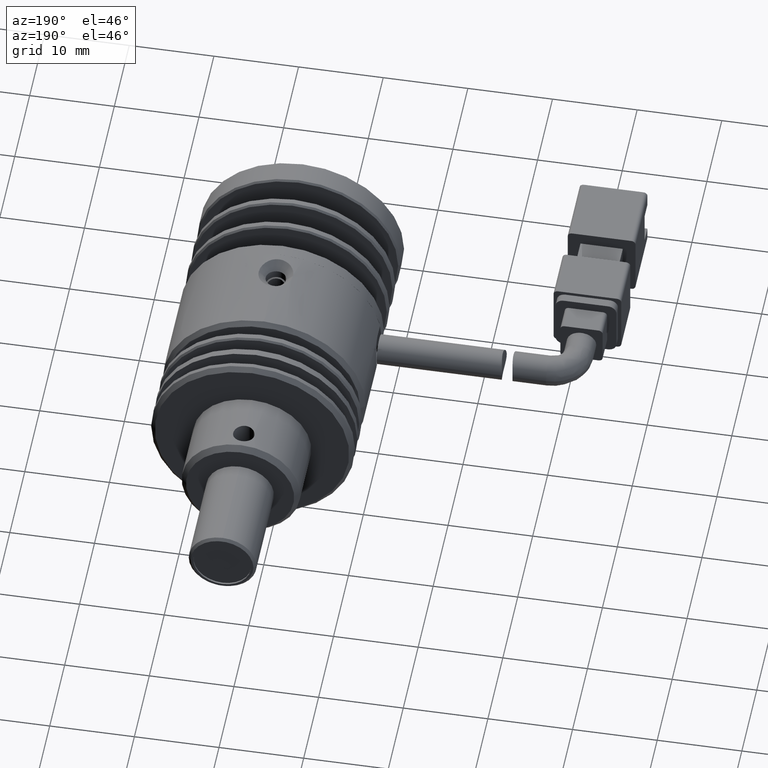
[diagram: clean part render]
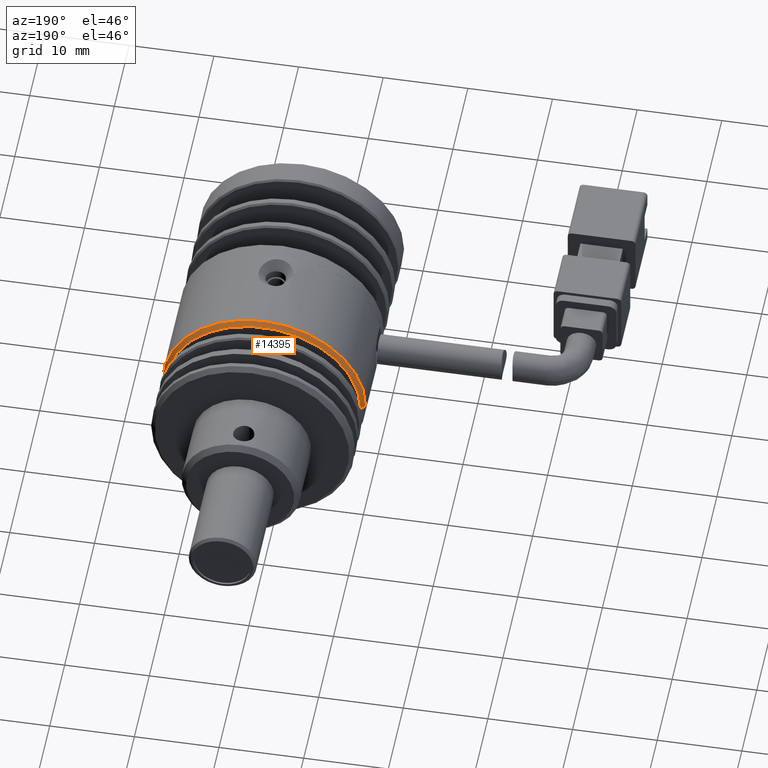
[diagram: same view with one face highlighted and labeled with its STEP entity id]
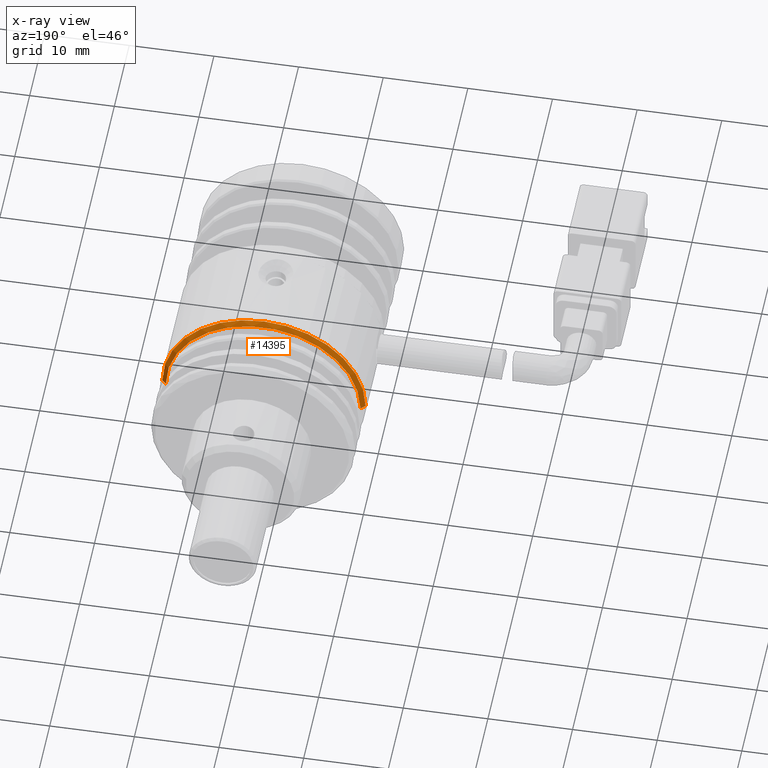
[diagram: x-ray of the same camera — body ghosted, the highlighted face saturated]
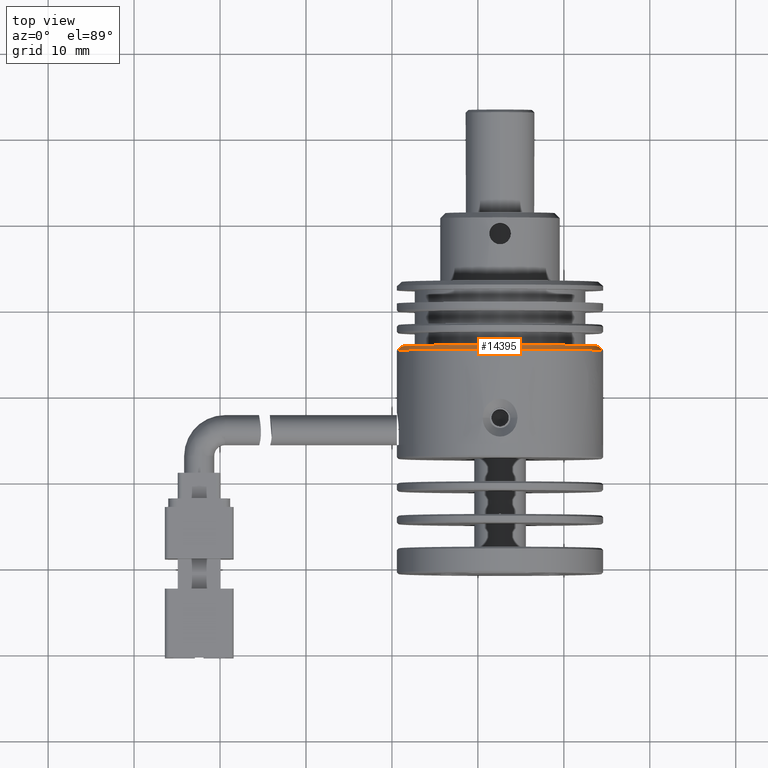
[diagram: same view with one face highlighted and labeled with its STEP entity id]
A machine part, auxiliary view. The second image highlights one B-rep face of the part: STEP entity #14395.
The next image is the same camera in x-ray: the body ghosted, the highlighted face saturated — about 0% of this face is hidden behind the body in this view.
A second angle (top view) of the same face is appended — the face is thin or edge-on in the first view.
In plain terms, the highlighted conical surface has half-angle 45 deg.
Its self-contained STEP definition (entity closure, byte-faithful):
#728 = DIRECTION ( 'NONE',  ( 0.000000000000000000, -1.000000000000000000, 0.000000000000000000 ) ) ;
#811 = VERTEX_POINT ( 'NONE', #1868 ) ;
#1868 = CARTESIAN_POINT ( 'NONE',  ( 14.57493378763582115, -4.714935510012609576, -9.174035921659379866 ) ) ;
#2283 = EDGE_CURVE ( 'NONE', #4476, #3507, #11790, .T. ) ;
#2972 = EDGE_CURVE ( 'NONE', #3507, #4010, #3222, .T. ) ;
#3222 = LINE ( 'NONE', #9267, #5239 ) ;
#3298 = CARTESIAN_POINT ( 'NONE',  ( 2.574933787635819815, -4.714935510012609576, -9.174035921659379866 ) ) ;
#3507 = VERTEX_POINT ( 'NONE', #7334 ) ;
#3624 = AXIS2_PLACEMENT_3D ( 'NONE', #13392, #9125, #6061 ) ;
#4010 = VERTEX_POINT ( 'NONE', #8695 ) ;
#4476 = VERTEX_POINT ( 'NONE', #9957 ) ;
#4819 = DIRECTION ( 'NONE',  ( 1.000000000000000000, -3.016910393003142859E-16, 0.000000000000000000 ) ) ;
#4832 = AXIS2_PLACEMENT_3D ( 'NONE', #5105, #12346, #4819 ) ;
#5105 = CARTESIAN_POINT ( 'NONE',  ( 2.574933787635819815, -4.214935510012605135, -9.174035921659379866 ) ) ;
#5239 = VECTOR ( 'NONE', #7790, 999.9999999999998863 ) ;
#5497 = AXIS2_PLACEMENT_3D ( 'NONE', #3298, #728, #6781 ) ;
#6061 = DIRECTION ( 'NONE',  ( 1.000000000000000000, -2.891205793294678326E-16, 0.000000000000000000 ) ) ;
#6640 = ORIENTED_EDGE ( 'NONE', *, *, #17068, .F. ) ;
#6781 = DIRECTION ( 'NONE',  ( 0.000000000000000000, 0.000000000000000000, -1.000000000000000000 ) ) ;
#7334 = CARTESIAN_POINT ( 'NONE',  ( -8.925066212364191287, -4.214935510012599806, -9.174035921659379866 ) ) ;
#7642 = FACE_OUTER_BOUND ( 'NONE', #18087, .T. ) ;
#7790 = DIRECTION ( 'NONE',  ( -0.7071067811865441310, -0.7071067811865510144, 8.659560562354890950E-17 ) ) ;
#7838 = CARTESIAN_POINT ( 'NONE',  ( 14.57493378763582115, -4.714935510012609576, -9.174035921659379866 ) ) ;
#8397 = CARTESIAN_POINT ( 'NONE',  ( 2.574933787635819815, -4.714935510012609576, -9.174035921659379866 ) ) ;
#8685 = DIRECTION ( 'NONE',  ( 0.000000000000000000, -1.000000000000000000, 0.000000000000000000 ) ) ;
#8695 = CARTESIAN_POINT ( 'NONE',  ( -9.425066212364189511, -4.714935510012609576, -9.174035921659379866 ) ) ;
#9125 = DIRECTION ( 'NONE',  ( -2.891205793294680298E-16, -1.000000000000000000, 0.000000000000000000 ) ) ;
#9267 = CARTESIAN_POINT ( 'NONE',  ( -9.425066212364178853, -4.714935510012599806, -9.174035921659379866 ) ) ;
#9957 = CARTESIAN_POINT ( 'NONE',  ( 14.07493378763582115, -4.214935510012609576, -9.174035921659379866 ) ) ;
#10801 = EDGE_CURVE ( 'NONE', #811, #19494, #16124, .T. ) ;
#10918 = DIRECTION ( 'NONE',  ( 0.7071067811865435759, -0.7071067811865515695, 0.000000000000000000 ) ) ;
#11145 = VECTOR ( 'NONE', #10918, 1000.000000000000000 ) ;
#11487 = DIRECTION ( 'NONE',  ( 0.000000000000000000, 0.000000000000000000, -1.000000000000000000 ) ) ;
#11790 = CIRCLE ( 'NONE', #4832, 11.50000000000000000 ) ;
#12346 = DIRECTION ( 'NONE',  ( -3.016910393003140393E-16, -1.000000000000000000, 0.000000000000000000 ) ) ;
#13267 = EDGE_CURVE ( 'NONE', #19494, #4010, #17247, .T. ) ;
#13276 = ORIENTED_EDGE ( 'NONE', *, *, #2972, .T. ) ;
#13392 = CARTESIAN_POINT ( 'NONE',  ( 2.574933787635819815, -4.714935510012609576, -9.174035921659379866 ) ) ;
#13452 = ORIENTED_EDGE ( 'NONE', *, *, #13267, .F. ) ;
#14146 = ORIENTED_EDGE ( 'NONE', *, *, #2283, .T. ) ;
#14395 = ADVANCED_FACE ( 'NONE', ( #7642 ), #19485, .T. ) ;
#15632 = CARTESIAN_POINT ( 'NONE',  ( 2.574933787635819815, -4.714935510012609576, 2.825964078340615249 ) ) ;
#16124 = CIRCLE ( 'NONE', #18011, 12.00000000000000178 ) ;
#16863 = ORIENTED_EDGE ( 'NONE', *, *, #10801, .F. ) ;
#17068 = EDGE_CURVE ( 'NONE', #4476, #811, #18864, .T. ) ;
#17247 = CIRCLE ( 'NONE', #5497, 12.00000000000000178 ) ;
#18011 = AXIS2_PLACEMENT_3D ( 'NONE', #8397, #8685, #11487 ) ;
#18087 = EDGE_LOOP ( 'NONE', ( #14146, #13276, #13452, #16863, #6640 ) ) ;
#18864 = LINE ( 'NONE', #7838, #11145 ) ;
#19485 = CONICAL_SURFACE ( 'NONE', #3624, 12.00000000000000000, 0.7853981633974433940 ) ;
#19494 = VERTEX_POINT ( 'NONE', #15632 ) ;